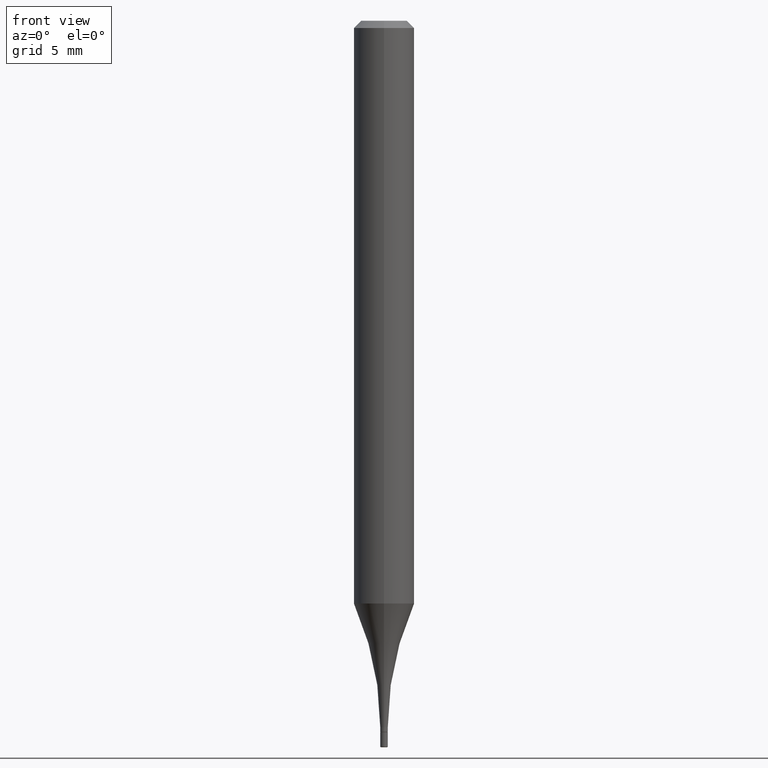
[diagram: clean part render]
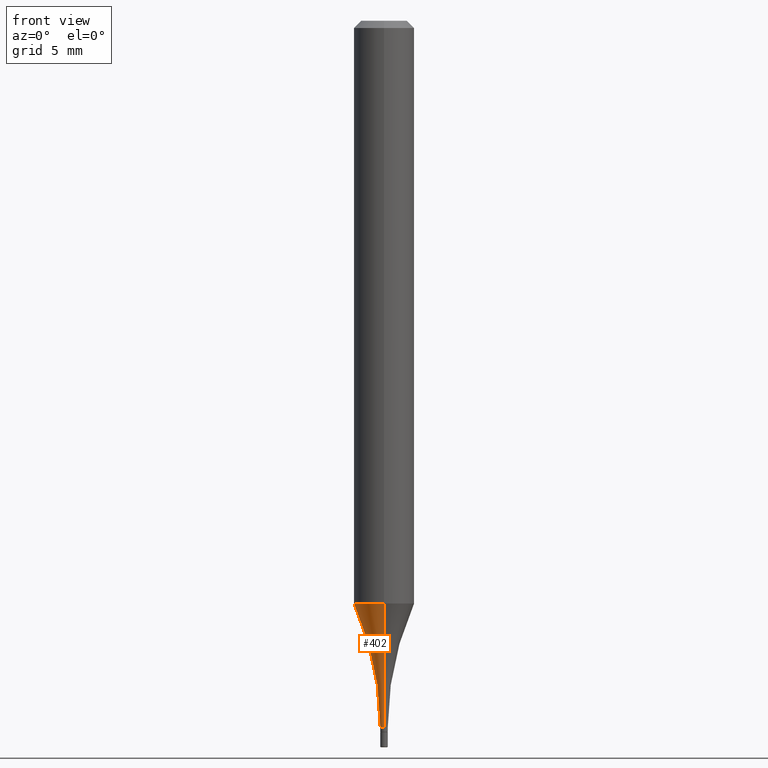
[diagram: same view with one face highlighted and labeled with its STEP entity id]
A machine part, front view. The second image highlights one B-rep face of the part: STEP entity #402.
In plain terms, the highlighted toroidal blend (fillet) surface has major radius 16.0731 mm and minor (blend) radius 15.875 mm.
Its self-contained STEP definition (entity closure, byte-faithful):
#23 = CIRCLE ( 'NONE', #82, 0.6250000000000000000 ) ;
#28 = DIRECTION ( 'NONE',  ( -6.982962677686265922E-15, -1.000000000000000000, 4.370956789862820361E-15 ) ) ;
#44 = CARTESIAN_POINT ( 'NONE',  ( 3.567938988224114792E-29, -5.094071273372150151E-15, -1.459000000000000297 ) ) ;
#54 = AXIS2_PLACEMENT_3D ( 'NONE', #111, #64, #28 ) ;
#64 = DIRECTION ( 'NONE',  ( -2.443919900360709498E-29, 3.493699460141969769E-15, 1.000000000000000000 ) ) ;
#67 = AXIS2_PLACEMENT_3D ( 'NONE', #408, #207, #369 ) ;
#82 = AXIS2_PLACEMENT_3D ( 'NONE', #246, #320, #412 ) ;
#111 = CARTESIAN_POINT ( 'NONE',  ( 2.940766808977116365E-29, -4.203965691105655160E-15, -1.203299178726387586 ) ) ;
#114 = CIRCLE ( 'NONE', #366, 0.007799999999999985764 ) ;
#162 = DIRECTION ( 'NONE',  ( -2.443919900360709498E-29, 3.493699460141969769E-15, 1.000000000000000000 ) ) ;
#174 = EDGE_CURVE ( 'NONE', #478, #186, #310, .T. ) ;
#186 = VERTEX_POINT ( 'NONE', #461 ) ;
#207 = DIRECTION ( 'NONE',  ( 1.000000000000000000, -7.105427357601001070E-15, 4.926342672693569514E-29 ) ) ;
#208 = CARTESIAN_POINT ( 'NONE',  ( 3.565679134626275915E-29, -5.097307512347135368E-15, -1.459000000000000297 ) ) ;
#209 = DIRECTION ( 'NONE',  ( -2.443919900360709498E-29, 3.493699460141969769E-15, 1.000000000000000000 ) ) ;
#229 = CARTESIAN_POINT ( 'NONE',  ( 2.497557716197074649E-16, 0.007799999999994888279, -1.459000000000000297 ) ) ;
#233 = VERTEX_POINT ( 'NONE', #229 ) ;
#246 = CARTESIAN_POINT ( 'NONE',  ( -4.418818782439833684E-15, -0.6328000000000050251, -1.458999999999998076 ) ) ;
#248 = CARTESIAN_POINT ( 'NONE',  ( -5.446710888591711359E-17, -0.007800000000005083249, -1.459000000000000297 ) ) ;
#279 = ORIENTED_EDGE ( 'NONE', *, *, #327, .F. ) ;
#293 = CIRCLE ( 'NONE', #67, 0.6250000000000000000 ) ;
#310 = CIRCLE ( 'NONE', #54, 0.06250000000000001388 ) ;
#316 = DIRECTION ( 'NONE',  ( -6.982962677686265922E-15, -1.000000000000000000, 3.493699460141969375E-15 ) ) ;
#317 = FACE_OUTER_BOUND ( 'NONE', #348, .T. ) ;
#320 = DIRECTION ( 'NONE',  ( -1.000000000000000000, 6.982962677686265922E-15, -4.883557194083112340E-29 ) ) ;
#326 = VERTEX_POINT ( 'NONE', #248 ) ;
#327 = EDGE_CURVE ( 'NONE', #186, #326, #23, .T. ) ;
#343 = EDGE_CURVE ( 'NONE', #233, #326, #114, .T. ) ;
#348 = EDGE_LOOP ( 'NONE', ( #356, #376, #426, #279 ) ) ;
#356 = ORIENTED_EDGE ( 'NONE', *, *, #174, .F. ) ;
#366 = AXIS2_PLACEMENT_3D ( 'NONE', #208, #162, #509 ) ;
#369 = DIRECTION ( 'NONE',  ( 7.105427357601000281E-15, 1.000000000000000000, 0.000000000000000000 ) ) ;
#376 = ORIENTED_EDGE ( 'NONE', *, *, #455, .T. ) ;
#385 = CARTESIAN_POINT ( 'NONE',  ( 4.440892098500921985E-16, 0.06249999999999582972, -1.203299178726387586 ) ) ;
#402 = ADVANCED_FACE ( 'NONE', ( #317 ), #410, .F. ) ;
#408 = CARTESIAN_POINT ( 'NONE',  ( 4.496314431889948893E-15, 0.6327999999999949221, -1.459000000000002295 ) ) ;
#410 = TOROIDAL_SURFACE ( 'NONE', #512, 0.6328000000000000291, 0.6250000000000000000 ) ;
#412 = DIRECTION ( 'NONE',  ( -6.982962677686265133E-15, -1.000000000000000000, 0.000000000000000000 ) ) ;
#426 = ORIENTED_EDGE ( 'NONE', *, *, #343, .T. ) ;
#455 = EDGE_CURVE ( 'NONE', #478, #233, #293, .T. ) ;
#461 = CARTESIAN_POINT ( 'NONE',  ( -4.364351673553626788E-16, -0.06250000000000423273, -1.203299178726387364 ) ) ;
#478 = VERTEX_POINT ( 'NONE', #385 ) ;
#509 = DIRECTION ( 'NONE',  ( -6.982962677686265922E-15, -1.000000000000000000, 0.000000000000000000 ) ) ;
#512 = AXIS2_PLACEMENT_3D ( 'NONE', #44, #209, #316 ) ;